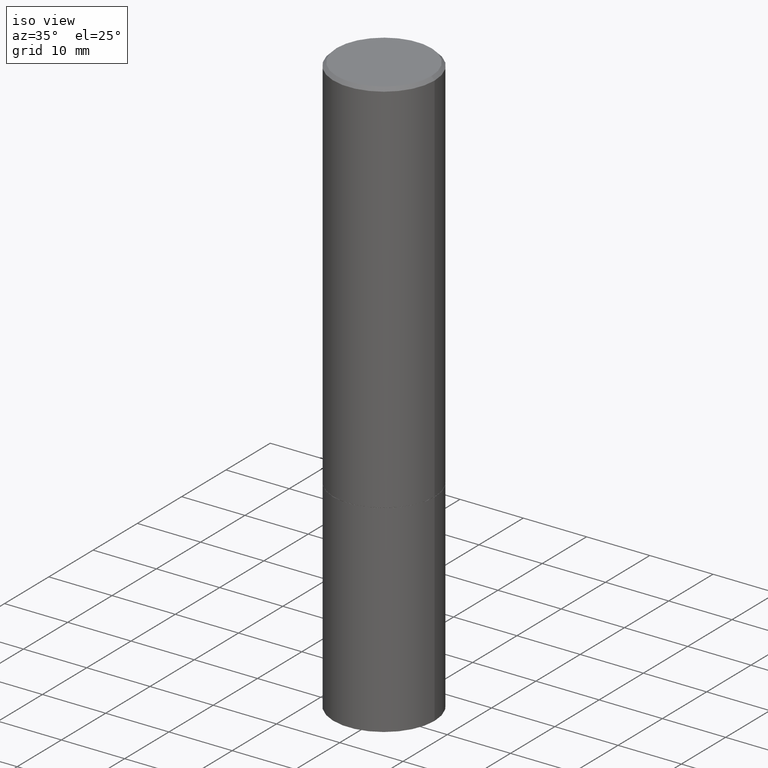
[diagram: clean part render]
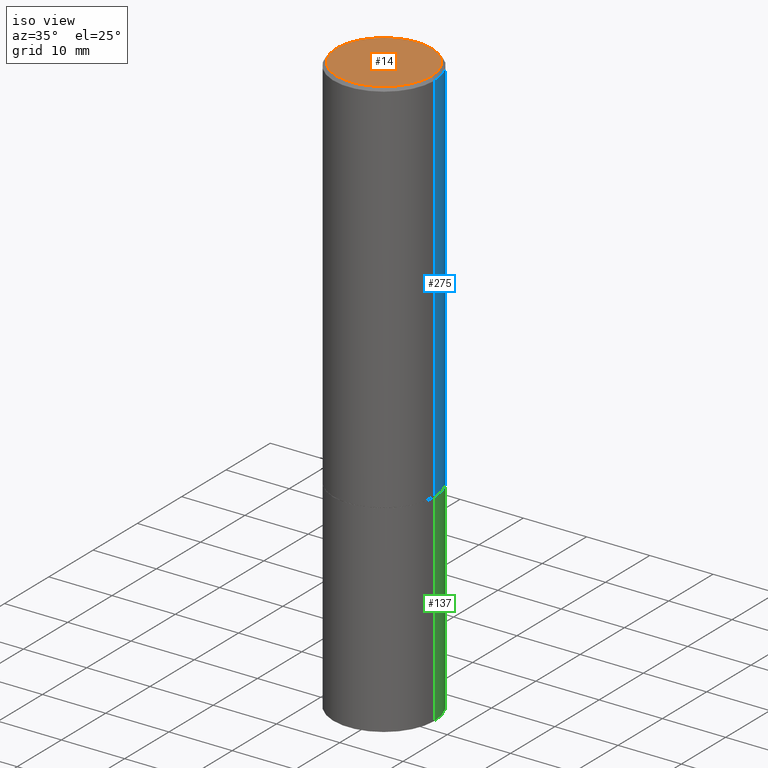
[diagram: same view with three faces highlighted in distinct colors, each labeled with its STEP entity id]
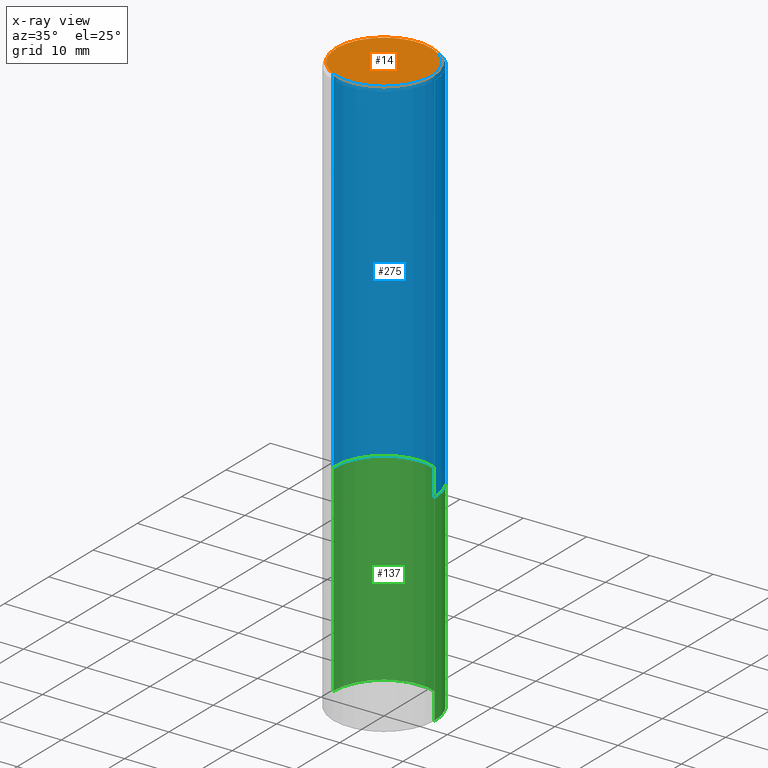
[diagram: x-ray of the same camera — body ghosted, the three highlighted faces saturated]
A machine part, iso view with three faces highlighted in distinct colors.
The next image is the same camera in x-ray (body ghosted, the three faces saturated) — at least one of them is partly hidden behind the body in this view.
Their STEP definitions:

[orange] entity #14 — the highlighted planar face has unit normal (0, -0, -1).
#9 = DIRECTION ( 'NONE',  ( 1.000000000000000000, -6.982962677686267499E-15, 4.876053491004739391E-29 ) ) ;
#14 = ADVANCED_FACE ( 'NONE', ( #76 ), #220, .F. ) ;
#27 = EDGE_CURVE ( 'NONE', #186, #118, #210, .T. ) ;
#40 = CARTESIAN_POINT ( 'NONE',  ( -1.043851414335219820E-46, 1.490343170380447200E-32, 4.268512490100411279E-18 ) ) ;
#45 = EDGE_CURVE ( 'NONE', #118, #186, #301, .T. ) ;
#61 = AXIS2_PLACEMENT_3D ( 'NONE', #105, #155, #163 ) ;
#71 = CARTESIAN_POINT ( 'NONE',  ( -1.043851414335219820E-46, 1.490343170380447200E-32, 4.268512490100411279E-18 ) ) ;
#76 = FACE_OUTER_BOUND ( 'NONE', #261, .T. ) ;
#78 = ORIENTED_EDGE ( 'NONE', *, *, #27, .T. ) ;
#105 = CARTESIAN_POINT ( 'NONE',  ( 2.059624841783562091E-15, 0.2949499999999997124, -1.027678164646734579E-15 ) ) ;
#109 = DIRECTION ( 'NONE',  ( 1.000000000000000000, -6.982962677686267499E-15, 4.876053491004739391E-29 ) ) ;
#115 = CARTESIAN_POINT ( 'NONE',  ( -0.2949499999999997124, 2.094539655171993740E-15, 4.268512490085885145E-18 ) ) ;
#118 = VERTEX_POINT ( 'NONE', #115 ) ;
#155 = DIRECTION ( 'NONE',  ( 2.438088387897960049E-29, -3.491481338843145188E-15, -1.000000000000000000 ) ) ;
#163 = DIRECTION ( 'NONE',  ( -1.000000000000000000, 6.982962677686265922E-15, -4.876176775795935793E-29 ) ) ;
#168 = AXIS2_PLACEMENT_3D ( 'NONE', #40, #287, #9 ) ;
#186 = VERTEX_POINT ( 'NONE', #199 ) ;
#199 = CARTESIAN_POINT ( 'NONE',  ( 0.2949499999999997124, -2.127023677808858103E-15, 4.268512490115050658E-18 ) ) ;
#210 = CIRCLE ( 'NONE', #168, 0.2949499999999997124 ) ;
#219 = AXIS2_PLACEMENT_3D ( 'NONE', #71, #238, #109 ) ;
#220 = PLANE ( 'NONE',  #61 ) ;
#238 = DIRECTION ( 'NONE',  ( -2.445468806185136597E-29, 3.491481338843145583E-15, 1.000000000000000000 ) ) ;
#261 = EDGE_LOOP ( 'NONE', ( #338, #78 ) ) ;
#287 = DIRECTION ( 'NONE',  ( -2.445468806185136597E-29, 3.491481338843145583E-15, 1.000000000000000000 ) ) ;
#301 = CIRCLE ( 'NONE', #219, 0.2949499999999997124 ) ;
#338 = ORIENTED_EDGE ( 'NONE', *, *, #45, .T. ) ;

[blue] entity #275 — the highlighted cylindrical surface (partial cylindrical patch) has radius 7.9997 mm, axis along (-0, 0, 1).
#2 = AXIS2_PLACEMENT_3D ( 'NONE', #260, #295, #288 ) ;
#12 = AXIS2_PLACEMENT_3D ( 'NONE', #309, #62, #65 ) ;
#16 = ORIENTED_EDGE ( 'NONE', *, *, #296, .T. ) ;
#21 = VERTEX_POINT ( 'NONE', #267 ) ;
#43 = ORIENTED_EDGE ( 'NONE', *, *, #52, .T. ) ;
#52 = EDGE_CURVE ( 'NONE', #256, #132, #214, .T. ) ;
#62 = DIRECTION ( 'NONE',  ( -2.445468806185136597E-29, 3.491481338843145583E-15, 1.000000000000000000 ) ) ;
#65 = DIRECTION ( 'NONE',  ( 1.000000000000000000, -6.982962677686263555E-15, 0.000000000000000000 ) ) ;
#90 = CARTESIAN_POINT ( 'NONE',  ( 0.3149499999999998967, -2.199284095337288688E-15, 1.535751875536929289E-29 ) ) ;
#94 = VECTOR ( 'NONE', #195, 39.37007874015748143 ) ;
#114 = EDGE_CURVE ( 'NONE', #224, #21, #123, .T. ) ;
#117 = ORIENTED_EDGE ( 'NONE', *, *, #114, .F. ) ;
#122 = CARTESIAN_POINT ( 'NONE',  ( 0.000000000000000000, 0.000000000000000000, 0.000000000000000000 ) ) ;
#123 = LINE ( 'NONE', #90, #94 ) ;
#132 = VERTEX_POINT ( 'NONE', #326 ) ;
#134 = CARTESIAN_POINT ( 'NONE',  ( 0.3149500000000000077, -1.044336983261372333E-14, -2.361199999999999743 ) ) ;
#162 = ORIENTED_EDGE ( 'NONE', *, *, #208, .F. ) ;
#173 = CARTESIAN_POINT ( 'NONE',  ( -0.3149500000000000077, -1.919103335750211213E-15, -2.361199999999999743 ) ) ;
#177 = CYLINDRICAL_SURFACE ( 'NONE', #279, 0.3149499999999998967 ) ;
#179 = CIRCLE ( 'NONE', #12, 0.3149500000000000077 ) ;
#184 = VECTOR ( 'NONE', #324, 39.37007874015748143 ) ;
#187 = CARTESIAN_POINT ( 'NONE',  ( -0.3149499999999998967, 2.237854346276434801E-15, -1.549218606675782116E-29 ) ) ;
#195 = DIRECTION ( 'NONE',  ( -2.445468806185136877E-29, 3.491481338843145188E-15, 1.000000000000000000 ) ) ;
#205 = DIRECTION ( 'NONE',  ( 1.000000000000000000, -6.982962677686265922E-15, 4.876176775795935232E-29 ) ) ;
#208 = EDGE_CURVE ( 'NONE', #21, #132, #286, .T. ) ;
#214 = LINE ( 'NONE', #187, #184 ) ;
#224 = VERTEX_POINT ( 'NONE', #134 ) ;
#244 = EDGE_LOOP ( 'NONE', ( #16, #43, #162, #117 ) ) ;
#256 = VERTEX_POINT ( 'NONE', #173 ) ;
#260 = CARTESIAN_POINT ( 'NONE',  ( 4.890937612370290675E-31, -6.982962677686316261E-17, -0.02000000000000007327 ) ) ;
#267 = CARTESIAN_POINT ( 'NONE',  ( 0.3149499999999997302, -2.230543471175005478E-15, -0.02000000000000007327 ) ) ;
#275 = ADVANCED_FACE ( 'NONE', ( #366 ), #177, .T. ) ;
#279 = AXIS2_PLACEMENT_3D ( 'NONE', #122, #339, #205 ) ;
#286 = CIRCLE ( 'NONE', #2, 0.3149499999999997302 ) ;
#288 = DIRECTION ( 'NONE',  ( 1.000000000000000000, -6.982962677686266711E-15, 0.000000000000000000 ) ) ;
#295 = DIRECTION ( 'NONE',  ( -2.445468806185136597E-29, 3.491481338843145583E-15, 1.000000000000000000 ) ) ;
#296 = EDGE_CURVE ( 'NONE', #224, #256, #179, .T. ) ;
#309 = CARTESIAN_POINT ( 'NONE',  ( 5.774240945164344150E-29, -8.244085737276433464E-15, -2.361199999999999743 ) ) ;
#324 = DIRECTION ( 'NONE',  ( -2.445468806185136877E-29, 3.491481338843145188E-15, 1.000000000000000000 ) ) ;
#326 = CARTESIAN_POINT ( 'NONE',  ( -0.3149499999999997302, 2.129454468560424601E-15, -0.02000000000000007327 ) ) ;
#339 = DIRECTION ( 'NONE',  ( -2.445468806185136597E-29, 3.491481338843145583E-15, 1.000000000000000000 ) ) ;
#366 = FACE_OUTER_BOUND ( 'NONE', #244, .T. ) ;

[green] entity #137 — the highlighted cylindrical surface (partial cylindrical patch) has radius 7.9997 mm, axis along (-0, 0, 1).
#13 = VERTEX_POINT ( 'NONE', #100 ) ;
#24 = DIRECTION ( 'NONE',  ( 1.000000000000000000, -6.982962677686266711E-15, 4.876176775795936353E-29 ) ) ;
#35 = LINE ( 'NONE', #196, #98 ) ;
#51 = CARTESIAN_POINT ( 'NONE',  ( 0.3149500000000000077, -1.044686131395256792E-14, -2.362199999999999633 ) ) ;
#58 = LINE ( 'NONE', #116, #255 ) ;
#60 = DIRECTION ( 'NONE',  ( 1.000000000000000000, -6.982962677686263555E-15, 0.000000000000000000 ) ) ;
#69 = VERTEX_POINT ( 'NONE', #158 ) ;
#84 = EDGE_CURVE ( 'NONE', #136, #13, #108, .T. ) ;
#89 = EDGE_CURVE ( 'NONE', #69, #13, #58, .T. ) ;
#98 = VECTOR ( 'NONE', #297, 39.37007874015748143 ) ;
#100 = CARTESIAN_POINT ( 'NONE',  ( -0.3149500000000000077, -8.209006967676139823E-15, -2.362199999999999633 ) ) ;
#108 = CIRCLE ( 'NONE', #236, 0.3149500000000000077 ) ;
#116 = CARTESIAN_POINT ( 'NONE',  ( -0.3149500000000000077, 2.237854346276435590E-15, -1.549218606675782676E-29 ) ) ;
#127 = EDGE_CURVE ( 'NONE', #183, #136, #35, .T. ) ;
#128 = CIRCLE ( 'NONE', #231, 0.3149500000000000077 ) ;
#136 = VERTEX_POINT ( 'NONE', #51 ) ;
#137 = ADVANCED_FACE ( 'NONE', ( #359 ), #164, .T. ) ;
#138 = ORIENTED_EDGE ( 'NONE', *, *, #84, .F. ) ;
#158 = CARTESIAN_POINT ( 'NONE',  ( -0.3149500000000000077, -8.209006967676139823E-15, -3.621999999999999886 ) ) ;
#164 = CYLINDRICAL_SURFACE ( 'NONE', #356, 0.3149500000000000077 ) ;
#165 = EDGE_LOOP ( 'NONE', ( #276, #347, #138, #363 ) ) ;
#167 = CARTESIAN_POINT ( 'NONE',  ( 0.3149500000000000077, -1.484542950462716186E-14, -3.621999999999999886 ) ) ;
#172 = CARTESIAN_POINT ( 'NONE',  ( 5.776686413970529753E-29, -8.247577218615278049E-15, -2.362199999999999633 ) ) ;
#183 = VERTEX_POINT ( 'NONE', #167 ) ;
#196 = CARTESIAN_POINT ( 'NONE',  ( 0.3149500000000000077, -2.199284095337289871E-15, 1.535751875536930130E-29 ) ) ;
#198 = DIRECTION ( 'NONE',  ( -2.445468806185136877E-29, 3.491481338843145188E-15, 1.000000000000000000 ) ) ;
#226 = DIRECTION ( 'NONE',  ( -2.445468806185136597E-29, 3.491481338843145583E-15, 1.000000000000000000 ) ) ;
#230 = DIRECTION ( 'NONE',  ( -2.445468806185136597E-29, 3.491481338843145583E-15, 1.000000000000000000 ) ) ;
#231 = AXIS2_PLACEMENT_3D ( 'NONE', #342, #230, #60 ) ;
#236 = AXIS2_PLACEMENT_3D ( 'NONE', #172, #226, #330 ) ;
#255 = VECTOR ( 'NONE', #198, 39.37007874015748143 ) ;
#266 = EDGE_CURVE ( 'NONE', #183, #69, #128, .T. ) ;
#269 = DIRECTION ( 'NONE',  ( -2.445468806185136597E-29, 3.491481338843145583E-15, 1.000000000000000000 ) ) ;
#276 = ORIENTED_EDGE ( 'NONE', *, *, #266, .T. ) ;
#297 = DIRECTION ( 'NONE',  ( -2.445468806185136877E-29, 3.491481338843145188E-15, 1.000000000000000000 ) ) ;
#330 = DIRECTION ( 'NONE',  ( 1.000000000000000000, -6.982962677686266711E-15, 0.000000000000000000 ) ) ;
#342 = CARTESIAN_POINT ( 'NONE',  ( 8.857488016002564476E-29, -1.264614540928987199E-14, -3.621999999999999886 ) ) ;
#347 = ORIENTED_EDGE ( 'NONE', *, *, #89, .T. ) ;
#351 = CARTESIAN_POINT ( 'NONE',  ( 0.000000000000000000, 0.000000000000000000, 0.000000000000000000 ) ) ;
#356 = AXIS2_PLACEMENT_3D ( 'NONE', #351, #269, #24 ) ;
#359 = FACE_OUTER_BOUND ( 'NONE', #165, .T. ) ;
#363 = ORIENTED_EDGE ( 'NONE', *, *, #127, .F. ) ;